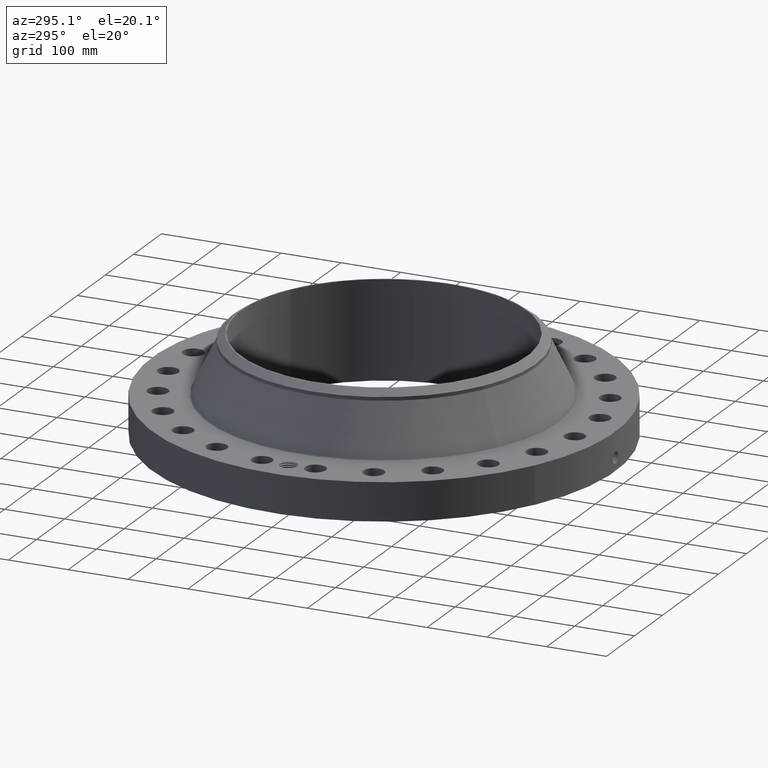
[diagram: clean part render]
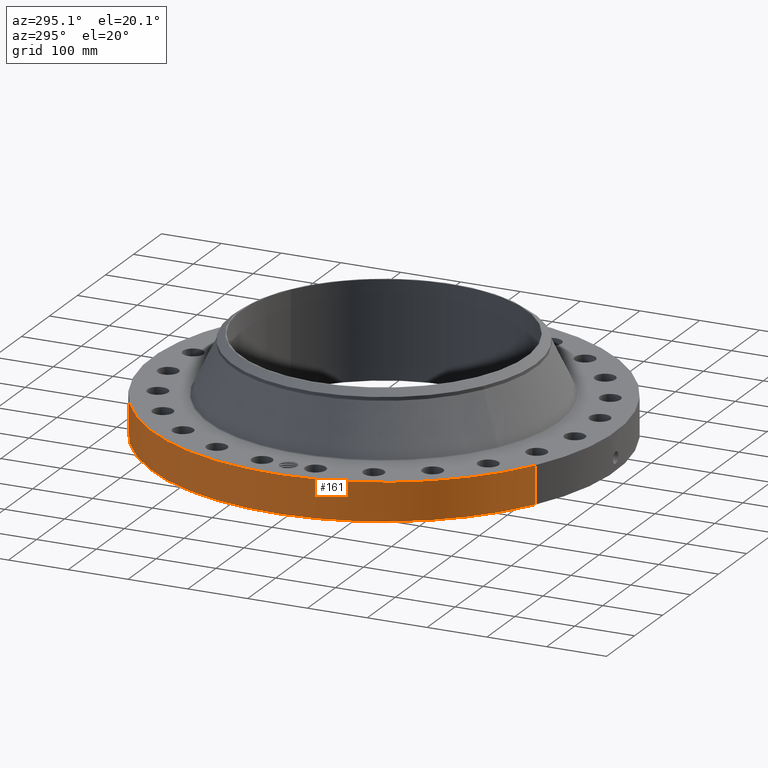
[diagram: same view with one face highlighted and labeled with its STEP entity id]
A machine part, auxiliary view. The second image highlights one B-rep face of the part: STEP entity #161.
In plain terms, the highlighted cylindrical surface (partial cylindrical patch) has radius 387.35 mm, axis along (0, 0, -1).
Its self-contained STEP definition (entity closure, byte-faithful):
#38=AXIS2_PLACEMENT_3D('Cylinder Axis2P3D',#35,#36,#37) ;
#42=AXIS2_PLACEMENT_3D('Circle Axis2P3D',#40,#41,$) ;
#58=AXIS2_PLACEMENT_3D('Circle Axis2P3D',#56,#57,$) ;
#35=CARTESIAN_POINT('Axis2P3D Location',(0.,0.,3.22000000001)) ;
#40=CARTESIAN_POINT('Axis2P3D Location',(0.,0.,0.0600000000002)) ;
#44=CARTESIAN_POINT('Vertex',(-7.31123946374,-13.3831340689,0.0600000000002)) ;
#46=CARTESIAN_POINT('Vertex',(7.31123946374,13.3831340689,0.0600000000002)) ;
#49=CARTESIAN_POINT('Line Origine',(-7.31123946374,-13.3831340689,1.31000000001)) ;
#53=CARTESIAN_POINT('Vertex',(-7.31123946374,-13.3831340689,2.56000000001)) ;
#56=CARTESIAN_POINT('Axis2P3D Location',(0.,0.,2.56000000001)) ;
#60=CARTESIAN_POINT('Vertex',(7.31123946374,13.3831340689,2.56000000001)) ;
#63=CARTESIAN_POINT('Line Origine',(7.31123946374,13.3831340689,1.31000000001)) ;
#75=CARTESIAN_POINT('Control Point',(-0.000716049755669,15.2499999833,1.29411846129)) ;
#76=CARTESIAN_POINT('Control Point',(-0.0189701072514,15.2499991261,1.29408159437)) ;
#77=CARTESIAN_POINT('Control Point',(-0.0372209751275,15.2499652355,1.29262936671)) ;
#78=CARTESIAN_POINT('Control Point',(-0.0552509399566,15.2498999123,1.28977927812)) ;
#79=CARTESIAN_POINT('Vertex',(-0.000715697200087,15.2499999833,1.29411851055)) ;
#81=CARTESIAN_POINT('Vertex',(-0.055242138106,15.2499001965,1.28978068759)) ;
#85=CARTESIAN_POINT('Control Point',(-0.0552420427631,15.2498999445,1.28978014022)) ;
#86=CARTESIAN_POINT('Control Point',(-0.0956981569349,15.2497533942,1.28536268072)) ;
#87=CARTESIAN_POINT('Control Point',(-0.135516524703,15.2494419834,1.27358724126)) ;
#88=CARTESIAN_POINT('Control Point',(-0.172195687342,15.2490277935,1.25523274047)) ;
#89=CARTESIAN_POINT('Vertex',(-0.172195687342,15.2490277935,1.25523274047)) ;
#93=CARTESIAN_POINT('Control Point',(-0.0310152642592,15.2499684608,0.53118928844)) ;
#94=CARTESIAN_POINT('Control Point',(-0.0961823379033,15.2498359245,0.539436739118)) ;
#95=CARTESIAN_POINT('Control Point',(-0.159294043278,15.2493594722,0.561293751231)) ;
#96=CARTESIAN_POINT('Control Point',(-0.216401136755,15.2485887094,0.596098828465)) ;
#97=CARTESIAN_POINT('Control Point',(-0.28881977146,15.2473275345,0.664189974701)) ;
#98=CARTESIAN_POINT('Control Point',(-0.336428392718,15.2462994751,0.748671469156)) ;
#99=CARTESIAN_POINT('Control Point',(-0.349472605833,15.2460004619,0.778732969811)) ;
#100=CARTESIAN_POINT('Control Point',(-0.371687708356,15.2454753168,0.848970817427)) ;
#101=CARTESIAN_POINT('Control Point',(-0.377175372902,15.2453335918,0.922141203263)) ;
#102=CARTESIAN_POINT('Control Point',(-0.374910288535,15.2453911791,0.962947951919)) ;
#103=CARTESIAN_POINT('Control Point',(-0.356496036795,15.245851249,1.06072433205)) ;
#104=CARTESIAN_POINT('Control Point',(-0.308136792068,15.2469313731,1.1479432577)) ;
#105=CARTESIAN_POINT('Control Point',(-0.269818080029,15.2477093271,1.19323963318)) ;
#106=CARTESIAN_POINT('Control Point',(-0.223535778916,15.2484480489,1.22954180682)) ;
#107=CARTESIAN_POINT('Control Point',(-0.172195687342,15.2490277935,1.25523274047)) ;
#108=CARTESIAN_POINT('Vertex',(-0.0310152642592,15.2499684608,0.53118928844)) ;
#112=CARTESIAN_POINT('Control Point',(-0.0310152642592,15.2499684608,0.53118928844)) ;
#113=CARTESIAN_POINT('Control Point',(-0.0206719752859,15.2499894969,0.53087456983)) ;
#114=CARTESIAN_POINT('Control Point',(-0.0103211166376,15.2500000019,0.530936539703)) ;
#115=CARTESIAN_POINT('Control Point',(2.72878355969E-006,15.2500000001,0.531374667806)) ;
#116=CARTESIAN_POINT('Vertex',(2.72878354271E-006,15.2500000001,0.531374667806)) ;
#120=CARTESIAN_POINT('Control Point',(0.192625061438,15.2487834134,0.58741326924)) ;
#121=CARTESIAN_POINT('Control Point',(0.149005457563,15.2493344231,0.562040395762)) ;
#122=CARTESIAN_POINT('Control Point',(0.101116386701,15.2497737091,0.543779824757)) ;
#123=CARTESIAN_POINT('Control Point',(0.0508056148396,15.249999991,0.533530663288)) ;
#124=CARTESIAN_POINT('Control Point',(2.72878353261E-006,15.2500000001,0.531374667806)) ;
#125=CARTESIAN_POINT('Vertex',(0.192625061438,15.2487834134,0.58741326924)) ;
#129=CARTESIAN_POINT('Control Point',(0.192625061438,15.2487834134,0.58741326924)) ;
#130=CARTESIAN_POINT('Control Point',(0.249453783192,15.2480655439,0.62046968899)) ;
#131=CARTESIAN_POINT('Control Point',(0.299509163489,15.2471684596,0.664842822364)) ;
#132=CARTESIAN_POINT('Control Point',(0.339645810454,15.2462572537,0.718973028968)) ;
#133=CARTESIAN_POINT('Control Point',(0.383846820921,15.2451782415,0.81717132328)) ;
#134=CARTESIAN_POINT('Control Point',(0.392394948557,15.2449495023,0.92245643258)) ;
#135=CARTESIAN_POINT('Control Point',(0.39026829482,15.2450057477,0.962621078101)) ;
#136=CARTESIAN_POINT('Control Point',(0.376095244267,15.2453740937,1.03752589666)) ;
#137=CARTESIAN_POINT('Control Point',(0.343961436371,15.2461332323,1.10595638754)) ;
#138=CARTESIAN_POINT('Control Point',(0.324884519545,15.2465612243,1.13637813139)) ;
#139=CARTESIAN_POINT('Control Point',(0.263167036742,15.2478271655,1.21273609867)) ;
#140=CARTESIAN_POINT('Control Point',(0.180082080124,15.2490857223,1.26567044335)) ;
#141=CARTESIAN_POINT('Control Point',(0.121355009513,15.2497029237,1.28768574766)) ;
#142=CARTESIAN_POINT('Control Point',(0.0601974085911,15.2500001022,1.29710564982)) ;
#143=CARTESIAN_POINT('Control Point',(-2.58579355474E-005,15.25,1.2941529843)) ;
#144=CARTESIAN_POINT('Vertex',(-2.5857935549E-005,15.25,1.2941529843)) ;
#148=CARTESIAN_POINT('Control Point',(-0.000715697190492,15.2499999833,1.29411851054)) ;
#149=CARTESIAN_POINT('Control Point',(-0.000370802107379,15.2499999995,1.29413607216)) ;
#150=CARTESIAN_POINT('Control Point',(-2.58579405789E-005,15.25,1.2941529843)) ;
#36=DIRECTION('Axis2P3D Direction',(0.,0.,-0.0393700787402)) ;
#37=DIRECTION('Axis2P3D XDirection',(0.0188750212049,0.0345504945626,0.)) ;
#41=DIRECTION('Axis2P3D Direction',(0.,0.,-0.0393700787402)) ;
#50=DIRECTION('Vector Direction',(0.,0.,-0.0393700787402)) ;
#57=DIRECTION('Axis2P3D Direction',(0.,0.,-0.0393700787402)) ;
#64=DIRECTION('Vector Direction',(0.,0.,-0.0393700787402)) ;
#51=VECTOR('Line Direction',#50,0.0393700787402) ;
#65=VECTOR('Line Direction',#64,0.0393700787402) ;
#69=ORIENTED_EDGE('',*,*,#48,.F.) ;
#70=ORIENTED_EDGE('',*,*,#55,.T.) ;
#71=ORIENTED_EDGE('',*,*,#62,.T.) ;
#72=ORIENTED_EDGE('',*,*,#67,.F.) ;
#153=ORIENTED_EDGE('',*,*,#83,.T.) ;
#154=ORIENTED_EDGE('',*,*,#91,.T.) ;
#155=ORIENTED_EDGE('',*,*,#110,.F.) ;
#156=ORIENTED_EDGE('',*,*,#118,.T.) ;
#157=ORIENTED_EDGE('',*,*,#127,.F.) ;
#158=ORIENTED_EDGE('',*,*,#146,.T.) ;
#159=ORIENTED_EDGE('',*,*,#151,.F.) ;
#160=FACE_BOUND('',#152,.T.) ;
#161=ADVANCED_FACE('PartBody',(#73,#160),#39,.T.) ;
#74=B_SPLINE_CURVE_WITH_KNOTS('',3,(#75,#76,#77,#78),.UNSPECIFIED.,.F.,.U.,(4,4),(34.616601993,36.6417164068),.UNSPECIFIED.) ;
#84=B_SPLINE_CURVE_WITH_KNOTS('',3,(#85,#86,#87,#88),.UNSPECIFIED.,.F.,.U.,(4,4),(0.,4.57283024439),.UNSPECIFIED.) ;
#92=B_SPLINE_CURVE_WITH_KNOTS('',5,(#93,#94,#95,#96,#97,#98,#99,#100,#101,#102,#103,#104,#105,#106,#107),.UNSPECIFIED.,.F.,.U.,(6,3,3,3,6),(0.,11.4156301007,17.2563856145,24.6134498812,35.2811567187),.UNSPECIFIED.) ;
#111=B_SPLINE_CURVE_WITH_KNOTS('',3,(#112,#113,#114,#115),.UNSPECIFIED.,.F.,.U.,(4,4),(0.,1.07896259327),.UNSPECIFIED.) ;
#119=B_SPLINE_CURVE_WITH_KNOTS('',4,(#120,#121,#122,#123,#124),.UNSPECIFIED.,.F.,.U.,(5,5),(0.,7.07932769758),.UNSPECIFIED.) ;
#128=B_SPLINE_CURVE_WITH_KNOTS('',5,(#129,#130,#131,#132,#133,#134,#135,#136,#137,#138,#139,#140,#141,#142,#143),.UNSPECIFIED.,.F.,.U.,(6,3,3,3,6),(0.,11.5289086153,18.607982648,25.0299917223,36.2869702171),.UNSPECIFIED.) ;
#147=B_SPLINE_CURVE_WITH_KNOTS('',2,(#148,#149,#150),.UNSPECIFIED.,.F.,.U.,(3,3),(1.021811413,1.04760230385),.UNSPECIFIED.) ;
#43=CIRCLE('generated circle',#42,15.2500000001) ;
#59=CIRCLE('generated circle',#58,15.2500000001) ;
#39=CYLINDRICAL_SURFACE('generated cylinder',#38,15.2500000001) ;
#48=EDGE_CURVE('',#45,#47,#43,.T.) ;
#55=EDGE_CURVE('',#45,#54,#52,.F.) ;
#62=EDGE_CURVE('',#54,#61,#59,.T.) ;
#67=EDGE_CURVE('',#47,#61,#66,.F.) ;
#83=EDGE_CURVE('',#80,#82,#74,.T.) ;
#91=EDGE_CURVE('',#82,#90,#84,.T.) ;
#110=EDGE_CURVE('',#109,#90,#92,.T.) ;
#118=EDGE_CURVE('',#109,#117,#111,.T.) ;
#127=EDGE_CURVE('',#126,#117,#119,.T.) ;
#146=EDGE_CURVE('',#126,#145,#128,.T.) ;
#151=EDGE_CURVE('',#80,#145,#147,.T.) ;
#68=EDGE_LOOP('',(#69,#70,#71,#72)) ;
#152=EDGE_LOOP('',(#153,#154,#155,#156,#157,#158,#159)) ;
#73=FACE_OUTER_BOUND('',#68,.T.) ;
#52=LINE('Line',#49,#51) ;
#66=LINE('Line',#63,#65) ;
#45=VERTEX_POINT('',#44) ;
#47=VERTEX_POINT('',#46) ;
#54=VERTEX_POINT('',#53) ;
#61=VERTEX_POINT('',#60) ;
#80=VERTEX_POINT('',#79) ;
#82=VERTEX_POINT('',#81) ;
#90=VERTEX_POINT('',#89) ;
#109=VERTEX_POINT('',#108) ;
#117=VERTEX_POINT('',#116) ;
#126=VERTEX_POINT('',#125) ;
#145=VERTEX_POINT('',#144) ;